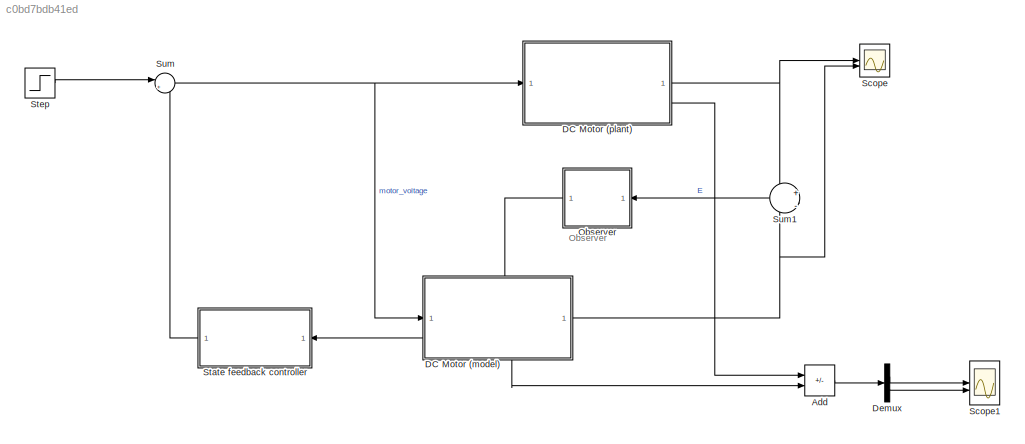
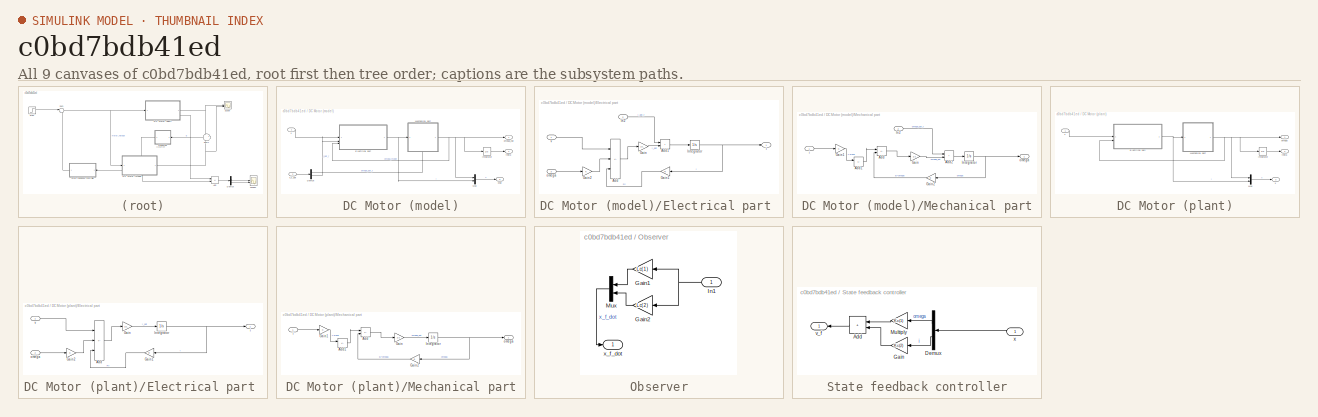
[diagram: thumbnail index - all 9 canvases of the model, root first then tree order]
MODEL slx_c0bd7bdb41ed
KIND model
CONFIG AbsTol = auto
CONFIG EnableMultiTasking = off
CONFIG FixedStep = auto
CONFIG MaxStep = auto
CONFIG MinStep = auto
CONFIG RelTol = 1e-3
CONFIG SampleTimeConstraint = Unconstrained
CONFIG SolverName = VariableStepAuto
CONFIG StartTime = 0.0
CONFIG StopTime = 10.0
BLOCK [Sum] Add
  IconShape = rectangular
  Inputs = +-
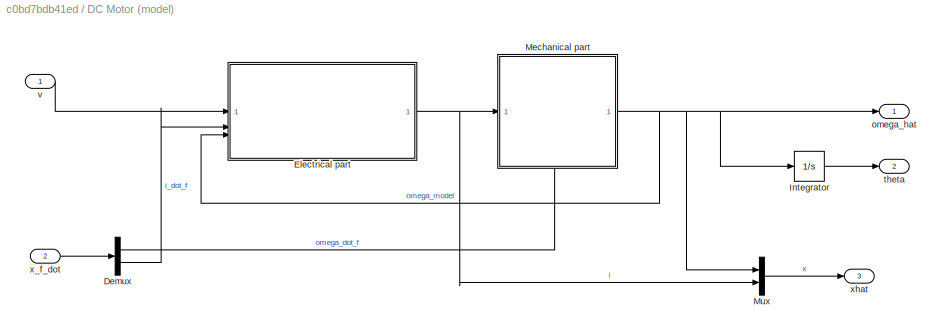
BLOCK [SubSystem] DC Motor (model)
  PortSchema = {"entries":[{"content":{"sides":[{"content":{"connectorIds":["In1","Out3"]},"type":"ConnectorPlacement.EquallySpacedRectSide","uuid":"2b483e04-f0bf-4587-962d-f1e1055a504f"},{"content":{"connectorIds":["Out1","Out2"],"side":"RIGHT"},"type":"ConnectorPlacement.EquallySpacedRectSide","uuid":"def1afe8-227d-4da8-931b-63cfceb9275c"},{"content":{"connectorIds":["In2"],"side":"TOP"},"type":"ConnectorPlace...<+259ch>
BLOCK [Demux] DC Motor (model)/Demux
  Outputs = 2
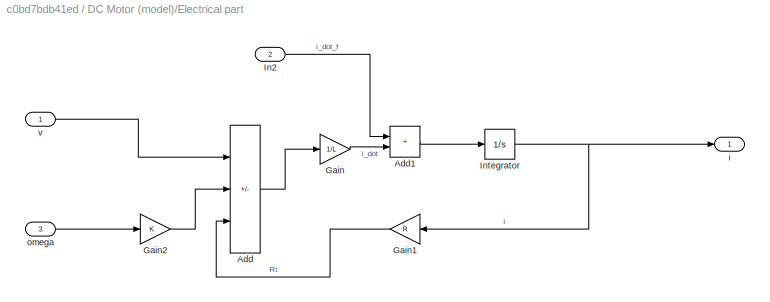
BLOCK [SubSystem] DC Motor (model)/Electrical part 
BLOCK [Sum] DC Motor (model)/Electrical part /Add
  IconShape = rectangular
  Inputs = +--
BLOCK [Sum] DC Motor (model)/Electrical part /Add1
  IconShape = rectangular
BLOCK [Gain] DC Motor (model)/Electrical part /Gain
  Gain = 1/L
BLOCK [Gain] DC Motor (model)/Electrical part /Gain1
  Gain = R
  NameLocation = top
BLOCK [Gain] DC Motor (model)/Electrical part /Gain2
  Gain = K
BLOCK [Inport] DC Motor (model)/Electrical part /In2
  Port = 2
BLOCK [Integrator] DC Motor (model)/Electrical part /Integrator
BLOCK [Outport] DC Motor (model)/Electrical part /i
BLOCK [Inport] DC Motor (model)/Electrical part /omega
  Port = 3
BLOCK [Inport] DC Motor (model)/Electrical part /v
BLOCK [Integrator] DC Motor (model)/Integrator
BLOCK [SubSystem] DC Motor (model)/Mechanical part
  PortSchema = {"entries":[{"content":{"sides":[{"content":{"connectorIds":["In1"]},"type":"ConnectorPlacement.EquallySpacedRectSide","uuid":"cfa22e76-426c-462d-8ef8-59579940fa0d"},{"content":{"connectorIds":["Out1"],"side":"RIGHT"},"type":"ConnectorPlacement.EquallySpacedRectSide","uuid":"d76cab75-f381-41dd-b31a-a9854dc13879"},{"content":{"side":"TOP"},"type":"ConnectorPlacement.EquallySpacedRectSide","uuid":"0...<+371ch>
BLOCK [Sum] DC Motor (model)/Mechanical part/Add
  IconShape = rectangular
  Inputs = +-
BLOCK [Sum] DC Motor (model)/Mechanical part/Add1
  IconShape = rectangular
  Inputs = +-
BLOCK [Sum] DC Motor (model)/Mechanical part/Add2
  IconShape = rectangular
BLOCK [Gain] DC Motor (model)/Mechanical part/Gain
  Gain = 1/J
BLOCK [Gain] DC Motor (model)/Mechanical part/Gain1
  Gain = K
BLOCK [Gain] DC Motor (model)/Mechanical part/Gain2
  Gain = b
  NameLocation = top
BLOCK [Inport] DC Motor (model)/Mechanical part/In2
  Port = 2
BLOCK [Integrator] DC Motor (model)/Mechanical part/Integrator
BLOCK [Inport] DC Motor (model)/Mechanical part/i
BLOCK [Outport] DC Motor (model)/Mechanical part/omega
BLOCK [Mux] DC Motor (model)/Mux
  DisplayOption = bar
  Inputs = 2
BLOCK [Outport] DC Motor (model)/omega_hat
BLOCK [Outport] DC Motor (model)/theta
  Port = 2
BLOCK [Inport] DC Motor (model)/v
BLOCK [Inport] DC Motor (model)/x_f_dot
  Port = 2
BLOCK [Outport] DC Motor (model)/xhat
  Port = 3
BLOCK [SubSystem] DC Motor (plant)
BLOCK [SubSystem] DC Motor (plant)/Electrical part 
BLOCK [Sum] DC Motor (plant)/Electrical part /Add
  IconShape = rectangular
  Inputs = +--
BLOCK [Gain] DC Motor (plant)/Electrical part /Gain
  Gain = 1/L
BLOCK [Gain] DC Motor (plant)/Electrical part /Gain1
  Gain = R
  NameLocation = top
BLOCK [Gain] DC Motor (plant)/Electrical part /Gain2
  Gain = K
BLOCK [Integrator] DC Motor (plant)/Electrical part /Integrator
  InitialCondition = 0.5
BLOCK [Outport] DC Motor (plant)/Electrical part /i
BLOCK [Inport] DC Motor (plant)/Electrical part /omega
  Port = 2
BLOCK [Inport] DC Motor (plant)/Electrical part /v
BLOCK [Integrator] DC Motor (plant)/Integrator
BLOCK [SubSystem] DC Motor (plant)/Mechanical part
BLOCK [Sum] DC Motor (plant)/Mechanical part/Add
  IconShape = rectangular
  Inputs = +-
BLOCK [Sum] DC Motor (plant)/Mechanical part/Add1
  IconShape = rectangular
  Inputs = +-
BLOCK [Gain] DC Motor (plant)/Mechanical part/Gain
  Gain = 1/J
BLOCK [Gain] DC Motor (plant)/Mechanical part/Gain1
  Gain = K
BLOCK [Gain] DC Motor (plant)/Mechanical part/Gain2
  Gain = b
  NameLocation = top
BLOCK [Integrator] DC Motor (plant)/Mechanical part/Integrator
  InitialCondition = 0.05
BLOCK [Inport] DC Motor (plant)/Mechanical part/i
BLOCK [Outport] DC Motor (plant)/Mechanical part/omega
BLOCK [Mux] DC Motor (plant)/Mux
  DisplayOption = bar
  Inputs = 2
BLOCK [Outport] DC Motor (plant)/omega
BLOCK [Outport] DC Motor (plant)/theta
  Port = 2
BLOCK [Inport] DC Motor (plant)/v
BLOCK [Outport] DC Motor (plant)/x
  Port = 3
BLOCK [Demux] Demux
  Outputs = 2
BLOCK [SubSystem] Observer
  NameLocation = top
BLOCK [Gain] Observer/Gain1
  Gain = Lc(1)
  NameLocation = top
BLOCK [Gain] Observer/Gain2
  Gain = Lc(2)
  NameLocation = top
BLOCK [Inport] Observer/In1
BLOCK [Mux] Observer/Mux
  DisplayOption = bar
  Inputs = 2
  NameLocation = top
BLOCK [Outport] Observer/x_f_dot
BLOCK [Scope] Scope
  Floating = off
  NumInputPorts = 2
  ScopeSpecificationString = Simulink.scopes.TimeScopeBlockCfg('CurrentConfiguration', extmgr.ConfigurationSet(extmgr.Configuration('Core','General UI',true),extmgr.Configuration('Core','Source UI',true),extmgr.Configuration('Sources','WiredSimulink',true),extmgr.Configuration('Visuals','Time Domain',true,'SerializedDisplays',{struct('MinYLimReal','-0.01307','MaxYLimReal','0.08692','YLabelReal','','MinYLimMag','0.00000','MaxY...<+1462ch>
BLOCK [Scope] Scope1
  Floating = off
  NumInputPorts = 2
  ScopeSpecificationString = Simulink.scopes.TimeScopeBlockCfg('CurrentConfiguration', extmgr.ConfigurationSet(extmgr.Configuration('Core','General UI',true),extmgr.Configuration('Core','Source UI',true),extmgr.Configuration('Sources','WiredSimulink',true,'DataLoggingVariableName','ScopeData1'),extmgr.Configuration('Visuals','Time Domain',true,'SerializedDisplays',{struct('MinYLimReal','-0.06738','MaxYLimReal','0.56304','YLab...<+1535ch>
BLOCK [SubSystem] State feedback controller
  NameLocation = top
BLOCK [Sum] State feedback controller/Add
  IconShape = rectangular
  NameLocation = top
BLOCK [Demux] State feedback controller/Demux
  NameLocation = top
  Outputs = 2
BLOCK [Gain] State feedback controller/Gain
  Gain = Kc(2)
  NameLocation = top
BLOCK [Gain] State feedback controller/Multiply
  Gain = Kc(1)
  NameLocation = top
BLOCK [Outport] State feedback controller/v_f
BLOCK [Inport] State feedback controller/x
  NameLocation = top
BLOCK [Step] Step
  SampleTime = 0
BLOCK [Sum] Sum
  Inputs = |+-
BLOCK [Sum] Sum1
  Inputs = +|-
  NameLocation = top
ANNOTATION (root): Observer
LINE Add:1 -> Demux:1
LINE DC Motor (model)/Demux:1 -> DC Motor (model)/Mechanical part:2
LINE DC Motor (model)/Demux:2 -> DC Motor (model)/Electrical part :2
LINE DC Motor (model)/Electrical part /Add1:1 -> DC Motor (model)/Electrical part /Integrator:1
LINE DC Motor (model)/Electrical part /Add:1 -> DC Motor (model)/Electrical part /Gain:1
LINE DC Motor (model)/Electrical part /Gain1:1 -> DC Motor (model)/Electrical part /Add:3
LINE DC Motor (model)/Electrical part /Gain2:1 -> DC Motor (model)/Electrical part /Add:2
LINE DC Motor (model)/Electrical part /Gain:1 -> DC Motor (model)/Electrical part /Add1:2
LINE DC Motor (model)/Electrical part /In2:1 -> DC Motor (model)/Electrical part /Add1:1
NET DC Motor (model)/Electrical part /Integrator:1 -> DC Motor (model)/Electrical part /Gain1:1, DC Motor (model)/Electrical part /i:1
LINE DC Motor (model)/Electrical part /omega:1 -> DC Motor (model)/Electrical part /Gain2:1
LINE DC Motor (model)/Electrical part /v:1 -> DC Motor (model)/Electrical part /Add:1
NET DC Motor (model)/Electrical part :1 -> DC Motor (model)/Mechanical part:1, DC Motor (model)/Mux:2
LINE DC Motor (model)/Integrator:1 -> DC Motor (model)/theta:1
LINE DC Motor (model)/Mechanical part/Add1:1 -> DC Motor (model)/Mechanical part/Add:1
LINE DC Motor (model)/Mechanical part/Add2:1 -> DC Motor (model)/Mechanical part/Integrator:1
LINE DC Motor (model)/Mechanical part/Add:1 -> DC Motor (model)/Mechanical part/Gain:1
LINE DC Motor (model)/Mechanical part/Gain1:1 -> DC Motor (model)/Mechanical part/Add1:1
LINE DC Motor (model)/Mechanical part/Gain2:1 -> DC Motor (model)/Mechanical part/Add:2
LINE DC Motor (model)/Mechanical part/Gain:1 -> DC Motor (model)/Mechanical part/Add2:2
LINE DC Motor (model)/Mechanical part/In2:1 -> DC Motor (model)/Mechanical part/Add2:1
NET DC Motor (model)/Mechanical part/Integrator:1 -> DC Motor (model)/Mechanical part/Gain2:1, DC Motor (model)/Mechanical part/omega:1
LINE DC Motor (model)/Mechanical part/i:1 -> DC Motor (model)/Mechanical part/Gain1:1
NET DC Motor (model)/Mechanical part:1 -> DC Motor (model)/Electrical part :3, DC Motor (model)/Integrator:1, DC Motor (model)/Mux:1, DC Motor (model)/omega_hat:1
LINE DC Motor (model)/Mux:1 -> DC Motor (model)/xhat:1
LINE DC Motor (model)/v:1 -> DC Motor (model)/Electrical part :1
LINE DC Motor (model)/x_f_dot:1 -> DC Motor (model)/Demux:1
NET DC Motor (model):1 -> Scope:2, Sum1:2
NET DC Motor (model):3 -> Add:2, State feedback controller:1
LINE DC Motor (plant)/Electrical part /Add:1 -> DC Motor (plant)/Electrical part /Gain:1
LINE DC Motor (plant)/Electrical part /Gain1:1 -> DC Motor (plant)/Electrical part /Add:3
LINE DC Motor (plant)/Electrical part /Gain2:1 -> DC Motor (plant)/Electrical part /Add:2
LINE DC Motor (plant)/Electrical part /Gain:1 -> DC Motor (plant)/Electrical part /Integrator:1
NET DC Motor (plant)/Electrical part /Integrator:1 -> DC Motor (plant)/Electrical part /Gain1:1, DC Motor (plant)/Electrical part /i:1
LINE DC Motor (plant)/Electrical part /omega:1 -> DC Motor (plant)/Electrical part /Gain2:1
LINE DC Motor (plant)/Electrical part /v:1 -> DC Motor (plant)/Electrical part /Add:1
NET DC Motor (plant)/Electrical part :1 -> DC Motor (plant)/Mechanical part:1, DC Motor (plant)/Mux:2
LINE DC Motor (plant)/Integrator:1 -> DC Motor (plant)/theta:1
LINE DC Motor (plant)/Mechanical part/Add1:1 -> DC Motor (plant)/Mechanical part/Add:1
LINE DC Motor (plant)/Mechanical part/Add:1 -> DC Motor (plant)/Mechanical part/Gain:1
LINE DC Motor (plant)/Mechanical part/Gain1:1 -> DC Motor (plant)/Mechanical part/Add1:1
LINE DC Motor (plant)/Mechanical part/Gain2:1 -> DC Motor (plant)/Mechanical part/Add:2
LINE DC Motor (plant)/Mechanical part/Gain:1 -> DC Motor (plant)/Mechanical part/Integrator:1
NET DC Motor (plant)/Mechanical part/Integrator:1 -> DC Motor (plant)/Mechanical part/Gain2:1, DC Motor (plant)/Mechanical part/omega:1
LINE DC Motor (plant)/Mechanical part/i:1 -> DC Motor (plant)/Mechanical part/Gain1:1
NET DC Motor (plant)/Mechanical part:1 -> DC Motor (plant)/Electrical part :2, DC Motor (plant)/Integrator:1, DC Motor (plant)/Mux:1, DC Motor (plant)/omega:1
LINE DC Motor (plant)/Mux:1 -> DC Motor (plant)/x:1
LINE DC Motor (plant)/v:1 -> DC Motor (plant)/Electrical part :1
NET DC Motor (plant):1 -> Scope:1, Sum1:1
LINE DC Motor (plant):3 -> Add:1
LINE Demux:1 -> Scope1:1
LINE Demux:2 -> Scope1:2
LINE Observer/Gain1:1 -> Observer/Mux:1
LINE Observer/Gain2:1 -> Observer/Mux:2
NET Observer/In1:1 -> Observer/Gain1:1, Observer/Gain2:1
LINE Observer/Mux:1 -> Observer/x_f_dot:1
LINE Observer:1 -> DC Motor (model):2
LINE State feedback controller/Add:1 -> State feedback controller/v_f:1
LINE State feedback controller/Demux:1 -> State feedback controller/Multiply:1
LINE State feedback controller/Demux:2 -> State feedback controller/Gain:1
LINE State feedback controller/Gain:1 -> State feedback controller/Add:2
LINE State feedback controller/Multiply:1 -> State feedback controller/Add:1
LINE State feedback controller/x:1 -> State feedback controller/Demux:1
LINE State feedback controller:1 -> Sum:2
LINE Step:1 -> Sum:1
LINE Sum1:1 -> Observer:1
NET Sum:1 -> DC Motor (model):1, DC Motor (plant):1
note: NET lines group one-source signal fan-out (src -> all destinations, sorted); 1:1 wires keep LINE
